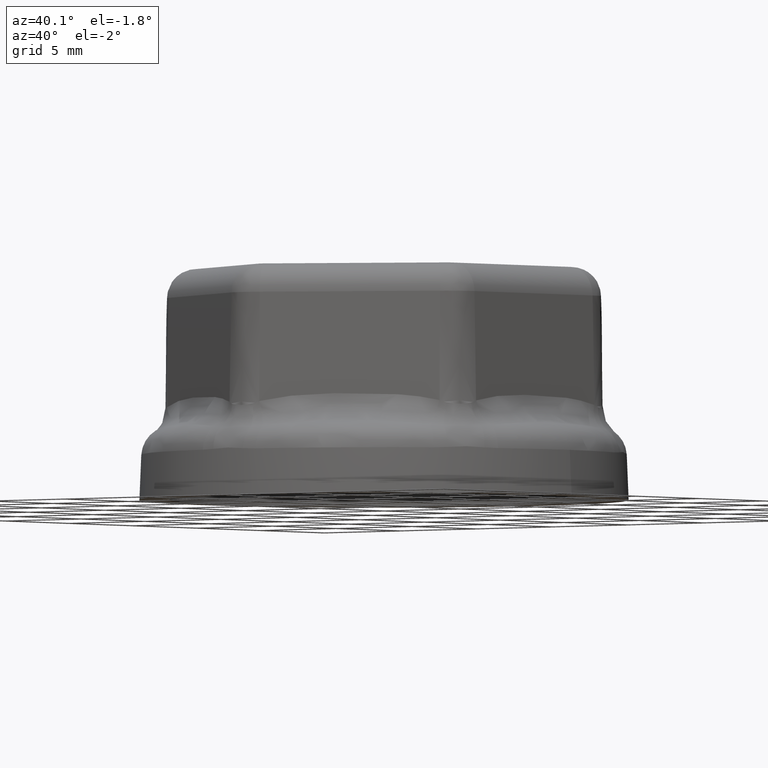
[diagram: clean part render]
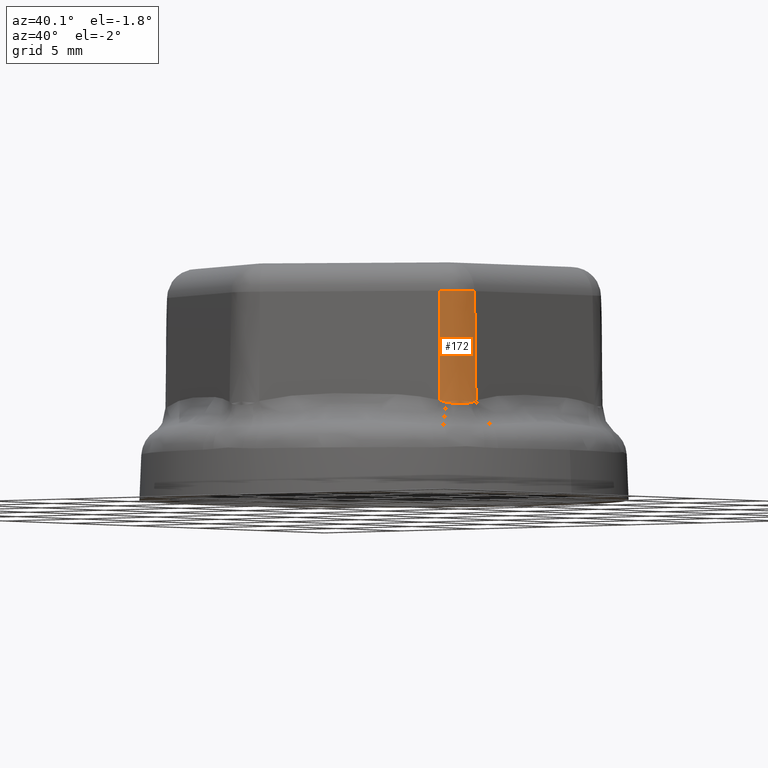
[diagram: same view with one face highlighted and labeled with its STEP entity id]
A machine part, auxiliary view. The second image highlights one B-rep face of the part: STEP entity #172.
In plain terms, the highlighted face is a freeform B-spline surface patch.
Its self-contained STEP definition (entity closure, byte-faithful):
#172 = ADVANCED_FACE( '', ( #403 ), #404, .T. );
#403 = FACE_OUTER_BOUND( '', #3804, .T. );
#404 = B_SPLINE_SURFACE_WITH_KNOTS( '', 1, 3, ( ( #3805, #3806, #3807, #3808 ), ( #3809, #3810, #3811, #3812 ) ), .UNSPECIFIED., .F., .F., .F., ( 2, 2 ), ( 4, 4 ), ( 0.000000000000000, 1.00000000000000 ), ( 3.00000000000000, 7.00000000000000 ), .UNSPECIFIED. );
#3804 = EDGE_LOOP( '', ( #5942, #5943, #5944, #5945, #5946, #5947 ) );
#3805 = CARTESIAN_POINT( '', ( 9.99999999999998, -4.61884612013824, 2.20000000000000 ) );
#3806 = CARTESIAN_POINT( '', ( 9.99999999206970, -5.32672753363645, 2.20000000000000 ) );
#3807 = CARTESIAN_POINT( '', ( 9.61308135920155, -5.99689026415798, 2.20000000000000 ) );
#3808 = CARTESIAN_POINT( '', ( 9.00003807621084, -6.35083097777530, 2.20000000000000 ) );
#3809 = CARTESIAN_POINT( '', ( 9.80101225981830, -4.61884612013824, 13.6000000000000 ) );
#3810 = CARTESIAN_POINT( '', ( 9.80101225228079, -5.25627059551251, 13.6000000000000 ) );
#3811 = CARTESIAN_POINT( '', ( 9.45256999101697, -5.85979029551980, 13.6000000000000 ) );
#3812 = CARTESIAN_POINT( '', ( 8.90054420612000, -6.17850253973631, 13.6000000000000 ) );
#5942 = ORIENTED_EDGE( '', *, *, #6268, .T. );
#5943 = ORIENTED_EDGE( '', *, *, #6381, .T. );
#5944 = ORIENTED_EDGE( '', *, *, #6384, .T. );
#5945 = ORIENTED_EDGE( '', *, *, #6385, .T. );
#5946 = ORIENTED_EDGE( '', *, *, #6370, .F. );
#5947 = ORIENTED_EDGE( '', *, *, #6386, .T. );
#6268 = EDGE_CURVE( '', #6684, #6682, #6685, .T. );
#6370 = EDGE_CURVE( '', #6847, #6849, #6850, .T. );
#6381 = EDGE_CURVE( '', #6682, #6862, #6864, .T. );
#6384 = EDGE_CURVE( '', #6862, #6868, #6869, .T. );
#6385 = EDGE_CURVE( '', #6868, #6849, #6870, .T. );
#6386 = EDGE_CURVE( '', #6847, #6684, #6871, .T. );
#6682 = VERTEX_POINT( '', #7939 );
#6684 = VERTEX_POINT( '', #7944 );
#6685 = LINE( '', #7945, #7946 );
#6847 = VERTEX_POINT( '', #8834 );
#6849 = VERTEX_POINT( '', #8837 );
#6850 = LINE( '', #8838, #8839 );
#6862 = VERTEX_POINT( '', #8892 );
#6864 = B_SPLINE_CURVE_WITH_KNOTS( '', 3, ( #8894, #8895, #8896, #8897, #8898, #8899, #8900, #8901, #8902, #8903, #8904, #8905, #8906, #8907 ), .UNSPECIFIED., .F., .F., ( 4, 2, 1, 1, 1, 1, 1, 1, 2, 4 ), ( -5.99999999751823E-008, 2.75659899808803E-006, 5.57319799615124E-006, 1.12063959922778E-005, 2.24727919845279E-005, 4.50055839690268E-005, 9.00711679380276E-005, 0.000180202335876025, 0.000270333503814023, 0.000360464671752021 ), .UNSPECIFIED. );
#6868 = VERTEX_POINT( '', #8914 );
#6869 = B_SPLINE_CURVE_WITH_KNOTS( '', 3, ( #8915, #8916, #8917, #8918, #8919, #8920, #8921, #8922, #8923, #8924, #8925, #8926, #8927, #8928, #8929, #8930, #8931, #8932, #8933, #8934, #8935, #8936, #8937, #8938, #8939, #8940, #8941, #8942 ), .UNSPECIFIED., .F., .F., ( 4, 2, 2, 2, 2, 2, 2, 1, 2, 2, 2, 2, 1, 2, 4 ), ( 0.000000000000000, 8.58602929883678E-005, 0.000171720585976736, 0.000343441171953477, 0.000429301464941848, 0.000472231611436035, 0.000515161757930222, 0.000686882343906966, 0.000858602929883711, 0.00103032351586046, 0.00111618380884883, 0.00115911395534301, 0.00120204410183720, 0.00128790439482557, 0.00137376468781394 ), .UNSPECIFIED. );
#6870 = B_SPLINE_CURVE_WITH_KNOTS( '', 3, ( #8943, #8944, #8945, #8946, #8947, #8948, #8949, #8950, #8951, #8952, #8953, #8954, #8955, #8956, #8957, #8958, #8959 ), .UNSPECIFIED., .F., .F., ( 4, 2, 2, 2, 2, 1, 1, 1, 2, 4 ), ( 0.000000000000000, 9.01986053063975E-005, 0.000180397210612795, 0.000225496513265995, 0.000270595815919194, 0.000315695118572394, 0.000338244769898995, 0.000349519595562296, 0.000355157008393945, 0.000360794421225594 ), .UNSPECIFIED. );
#6871 = B_SPLINE_CURVE_WITH_KNOTS( '', 3, ( #8960, #8961, #8962, #8963, #8964, #8965, #8966, #8967, #8968, #8969, #8970, #8971, #8972, #8973, #8974, #8975, #8976, #8977, #8978, #8979, #8980, #8981, #8982, #8983, #8984, #8985, #8986, #8987, #8988, #8989, #8990, #8991, #8992, #8993, #8994 ), .UNSPECIFIED., .F., .F., ( 4, 2, 1, 1, 1, 1, 1, 1, 2, 2, 2, 2, 2, 2, 2, 1, 2, 2, 2, 2, 4 ), ( -5.99999999758372E-008, 1.83229614357120E-006, 3.72459228711825E-006, 7.50918457420977E-006, 1.50783691483928E-005, 3.02167382967589E-005, 6.04934765934936E-005, 0.000121046953186963, 0.000242153906373902, 0.000484367812747782, 0.000605474765934720, 0.000666028242528189, 0.000726581719121658, 0.000968795625495530, 0.00108990257868246, 0.00115045605527593, 0.00118073279357267, 0.00121100953186940, 0.00145322343824329, 0.00169543734461717, 0.00193765125099106 ), .UNSPECIFIED. );
#7939 = CARTESIAN_POINT( '', ( 8.97814109988644, -6.31290430323062, 4.70895381822185 ) );
#7944 = CARTESIAN_POINT( '', ( 8.92998934047302, -6.22950301161063, 10.2261786096557 ) );
#7945 = CARTESIAN_POINT( '', ( 9.00003807621084, -6.35083097777530, 2.20000000000000 ) );
#7946 = VECTOR( '', #9433, 1000.00000000000 );
#8834 = CARTESIAN_POINT( '', ( 9.85990253124297, -4.61884612013824, 10.2261786096557 ) );
#8837 = CARTESIAN_POINT( '', ( 9.95620604820306, -4.61884612013824, 4.70895381810522 ) );
#8838 = CARTESIAN_POINT( '', ( 9.99999999999998, -4.61884612013824, 2.20000000000000 ) );
#8839 = VECTOR( '', #9556, 1000.00000000000 );
#8892 = CARTESIAN_POINT( '', ( 9.25889183105353, -6.11782621156762, 4.59449284761144 ) );
#8894 = CARTESIAN_POINT( '', ( 8.97814110034762, -6.31290430304811, 4.70895381406620 ) );
#8895 = CARTESIAN_POINT( '', ( 8.97889250798952, -6.31247786790472, 4.70858637752087 ) );
#8896 = CARTESIAN_POINT( '', ( 8.97965357620020, -6.31204528605741, 4.70821452425932 ) );
#8897 = CARTESIAN_POINT( '', ( 8.98116571174169, -6.31118437317820, 4.70747635735479 ) );
#8898 = CARTESIAN_POINT( '', ( 8.98343324948572, -6.30989129214815, 4.70637039192584 ) );
#8899 = CARTESIAN_POINT( '', ( 8.98871952416990, -6.30686210555912, 4.70379885697715 ) );
#8900 = CARTESIAN_POINT( '', ( 8.99927358439680, -6.30075561560874, 4.69869244696195 ) );
#8901 = CARTESIAN_POINT( '', ( 9.02030852549805, -6.28834911743083, 4.68862996455725 ) );
#8902 = CARTESIAN_POINT( '', ( 9.06209185344724, -6.26275297673919, 4.66913692908949 ) );
#8903 = CARTESIAN_POINT( '', ( 9.12099811327961, -6.22389493223895, 4.64327293391557 ) );
#8904 = CARTESIAN_POINT( '', ( 9.16735842028850, -6.19020703567290, 4.62514002138530 ) );
#8905 = CARTESIAN_POINT( '', ( 9.21337361754063, -6.15511013561063, 4.60856214189966 ) );
#8906 = CARTESIAN_POINT( '', ( 9.23620849214416, -6.13685772525334, 4.60104938097039 ) );
#8907 = CARTESIAN_POINT( '', ( 9.25889183105353, -6.11782621156762, 4.59449284761145 ) );
#8914 = CARTESIAN_POINT( '', ( 9.92763883074311, -4.95952243045940, 4.59449284768814 ) );
#8915 = CARTESIAN_POINT( '', ( 9.25889183105353, -6.11782621156762, 4.59449284761144 ) );
#8916 = CARTESIAN_POINT( '', ( 9.28046379863710, -6.09972714785037, 4.58825755182851 ) );
#8917 = CARTESIAN_POINT( '', ( 9.30165275227485, -6.08113623066626, 4.58261239363019 ) );
#8918 = CARTESIAN_POINT( '', ( 9.34324538573892, -6.04299085729200, 4.57230880022926 ) );
#8919 = CARTESIAN_POINT( '', ( 9.36364920513836, -6.02343634500419, 4.56765132030242 ) );
#8920 = CARTESIAN_POINT( '', ( 9.42365959149619, -5.96334351410263, 4.55496709725441 ) );
#8921 = CARTESIAN_POINT( '', ( 9.46206626349526, -5.92137972932752, 4.54821523711106 ) );
#8922 = CARTESIAN_POINT( '', ( 9.51717829350557, -5.85557303440845, 4.54021160053945 ) );
#8923 = CARTESIAN_POINT( '', ( 9.53515069146461, -5.83313428021016, 4.53790000711149 ) );
#8924 = CARTESIAN_POINT( '', ( 9.56135552465001, -5.79890250163944, 4.53495541180083 ) );
#8925 = CARTESIAN_POINT( '', ( 9.56996834716014, -5.78739256733730, 4.53406051452743 ) );
#8926 = CARTESIAN_POINT( '', ( 9.58694932954091, -5.76417404234051, 4.53243977562261 ) );
#8927 = CARTESIAN_POINT( '', ( 9.59532191161685, -5.75245870396367, 4.53171370336203 ) );
#8928 = CARTESIAN_POINT( '', ( 9.63643348493165, -5.69358585319524, 4.52850808104931 ) );
#8929 = CARTESIAN_POINT( '', ( 9.69762353215749, -5.59722308104049, 4.52605246399653 ) );
#8930 = CARTESIAN_POINT( '', ( 9.74995300470924, -5.49667045675362, 4.52858396480077 ) );
#8931 = CARTESIAN_POINT( '', ( 9.79788394747716, -5.39404141872388, 4.53368145034090 ) );
#8932 = CARTESIAN_POINT( '', ( 9.81965018603138, -5.34168859952453, 4.53751036502761 ) );
#8933 = CARTESIAN_POINT( '', ( 9.84893448209214, -5.26157949954548, 4.54544089878566 ) );
#8934 = CARTESIAN_POINT( '', ( 9.85813413345265, -5.23461278332540, 4.54845132601194 ) );
#8935 = CARTESIAN_POINT( '', ( 9.87107377454230, -5.19376109282416, 4.55357931414579 ) );
#8936 = CARTESIAN_POINT( '', ( 9.87524605025174, -5.18006745002676, 4.55539246153099 ) );
#8937 = CARTESIAN_POINT( '', ( 9.88326593191329, -5.15266660863842, 4.55921926173008 ) );
#8938 = CARTESIAN_POINT( '', ( 9.89482197748968, -5.11150521709656, 4.56526558215626 ) );
#8939 = CARTESIAN_POINT( '', ( 9.90496441655459, -5.07017335881112, 4.57227622650745 ) );
#8940 = CARTESIAN_POINT( '', ( 9.91723837742639, -5.01493607658988, 4.58260428739966 ) );
#8941 = CARTESIAN_POINT( '', ( 9.92275067707637, -4.98725320170885, 4.58825769412316 ) );
#8942 = CARTESIAN_POINT( '', ( 9.92763883074311, -4.95952243045940, 4.59449284768815 ) );
#8943 = CARTESIAN_POINT( '', ( 9.92763883074311, -4.95952243045940, 4.59449284768814 ) );
#8944 = CARTESIAN_POINT( '', ( 9.93275711615759, -4.93048610884578, 4.60102154894789 ) );
#8945 = CARTESIAN_POINT( '', ( 9.93714006278432, -4.90165498923727, 4.60851030768028 ) );
#8946 = CARTESIAN_POINT( '', ( 9.94452726662618, -4.84430982068718, 4.62506408321527 ) );
#8947 = CARTESIAN_POINT( '', ( 9.94753121799866, -4.81579609652908, 4.63413029112049 ) );
#8948 = CARTESIAN_POINT( '', ( 9.95104970148642, -4.77320851237914, 4.64871274702348 ) );
#8949 = CARTESIAN_POINT( '', ( 9.95205775590150, -4.75904327366242, 4.65373790385546 ) );
#8950 = CARTESIAN_POINT( '', ( 9.95375000409790, -4.73076603701951, 4.66408824698633 ) );
#8951 = CARTESIAN_POINT( '', ( 9.95443342847409, -4.71666433645237, 4.66940981060550 ) );
#8952 = CARTESIAN_POINT( '', ( 9.95548012931235, -4.68856735071946, 4.68030189922036 ) );
#8953 = CARTESIAN_POINT( '', ( 9.95602564437290, -4.66756467789747, 4.68866125857164 ) );
#8954 = CARTESIAN_POINT( '', ( 9.95625142472491, -4.64317109231940, 4.69871352785927 ) );
#8955 = CARTESIAN_POINT( '', ( 9.95626251332316, -4.63100017128443, 4.70381074037874 ) );
#8956 = CARTESIAN_POINT( '', ( 9.95624553948426, -4.62578944614490, 4.70601008416988 ) );
#8957 = CARTESIAN_POINT( '', ( 9.95622940489836, -4.62231680831499, 4.70747956319382 ) );
#8958 = CARTESIAN_POINT( '', ( 9.95621885815834, -4.62057532434141, 4.70821839113397 ) );
#8959 = CARTESIAN_POINT( '', ( 9.95620604827355, -4.61884612013824, 4.70895381406671 ) );
#8960 = CARTESIAN_POINT( '', ( 9.85990253124297, -4.61884612013824, 10.2261786096557 ) );
#8961 = CARTESIAN_POINT( '', ( 9.85990253123252, -4.61947688551951, 10.2261786098344 ) );
#8962 = CARTESIAN_POINT( '', ( 9.85990219122808, -4.62012613570415, 10.2261786095205 ) );
#8963 = CARTESIAN_POINT( '', ( 9.85990082969042, -4.62140689697638, 10.2261786089801 ) );
#8964 = CARTESIAN_POINT( '', ( 9.85989776608342, -4.62332785875759, 10.2261786077648 ) );
#8965 = CARTESIAN_POINT( '', ( 9.85988347322198, -4.62780884284548, 10.2261786021080 ) );
#8966 = CARTESIAN_POINT( '', ( 9.85982634665498, -4.63676577726259, 10.2261785795997 ) );
#8967 = CARTESIAN_POINT( '', ( 9.85959822059649, -4.65465956228931, 10.2261784905317 ) );
#8968 = CARTESIAN_POINT( '', ( 9.85868872101227, -4.69036719292872, 10.2261781420875 ) );
#8969 = CARTESIAN_POINT( '', ( 9.85507344523913, -4.76146564427730, 10.2261768121528 ) );
#8970 = CARTESIAN_POINT( '', ( 9.84894788133801, -4.82187334398400, 10.2261747594521 ) );
#8971 = CARTESIAN_POINT( '', ( 9.83275242413421, -4.94199308067208, 10.2261699112836 ) );
#8972 = CARTESIAN_POINT( '', ( 9.81671351105663, -5.02114838209728, 10.2261657030205 ) );
#8973 = CARTESIAN_POINT( '', ( 9.78484335935131, -5.13850356762526, 10.2261597115565 ) );
#8974 = CARTESIAN_POINT( '', ( 9.77291377411239, -5.17739158763611, 10.2261577651058 ) );
#8975 = CARTESIAN_POINT( '', ( 9.75302591875366, -5.23537202736835, 10.2261551084774 ) );
#8976 = CARTESIAN_POINT( '', ( 9.74605360864193, -5.25466524997722, 10.2261542655892 ) );
#8977 = CARTESIAN_POINT( '', ( 9.73153499617884, -5.29287818459333, 10.2261527038147 ) );
#8978 = CARTESIAN_POINT( '', ( 9.72398059203674, -5.31182423976279, 10.2261519836087 ) );
#8979 = CARTESIAN_POINT( '', ( 9.68475368686573, -5.40576365563015, 10.2261487342522 ) );
#8980 = CARTESIAN_POINT( '', ( 9.64873784232599, -5.47839602021149, 10.2261473020261 ) );
#8981 = CARTESIAN_POINT( '', ( 9.58789480686956, -5.58363768395556, 10.2261473210957 ) );
#8982 = CARTESIAN_POINT( '', ( 9.56647304692145, -5.61809813978246, 10.2261476803737 ) );
#8983 = CARTESIAN_POINT( '', ( 9.53260784644957, -5.66884702172489, 10.2261487256885 ) );
#8984 = CARTESIAN_POINT( '', ( 9.51524170819909, -5.69398579596478, 10.2261493741602 ) );
#8985 = CARTESIAN_POINT( '', ( 9.49721751455330, -5.71876685817278, 10.2261501997925 ) );
#8986 = CARTESIAN_POINT( '', ( 9.48505401947820, -5.73520745970678, 10.2261507877828 ) );
#8987 = CARTESIAN_POINT( '', ( 9.47889285513922, -5.74339516498952, 10.2261511008959 ) );
#8988 = CARTESIAN_POINT( '', ( 9.42291167191686, -5.81654197135775, 10.2261540718656 ) );
#8989 = CARTESIAN_POINT( '', ( 9.36956956344861, -5.87751356359647, 10.2261578193621 ) );
#8990 = CARTESIAN_POINT( '', ( 9.25598980848435, -5.99166248508793, 10.2261657589611 ) );
#8991 = CARTESIAN_POINT( '', ( 9.19575061283559, -6.04483806328076, 10.2261699411862 ) );
#8992 = CARTESIAN_POINT( '', ( 9.06825562441880, -6.14325811957496, 10.2261763771208 ) );
#8993 = CARTESIAN_POINT( '', ( 9.00100128779508, -6.18850424360725, 10.2261786096628 ) );
#8994 = CARTESIAN_POINT( '', ( 8.92998934047302, -6.22950301161063, 10.2261786096557 ) );
#9433 = DIRECTION( '', ( 0.00872620338797590, -0.0151142272340935, -0.999847695156391 ) );
#9556 = DIRECTION( '', ( 0.0174524064372835, -5.81281903853656E-018, -0.999847695156391 ) );